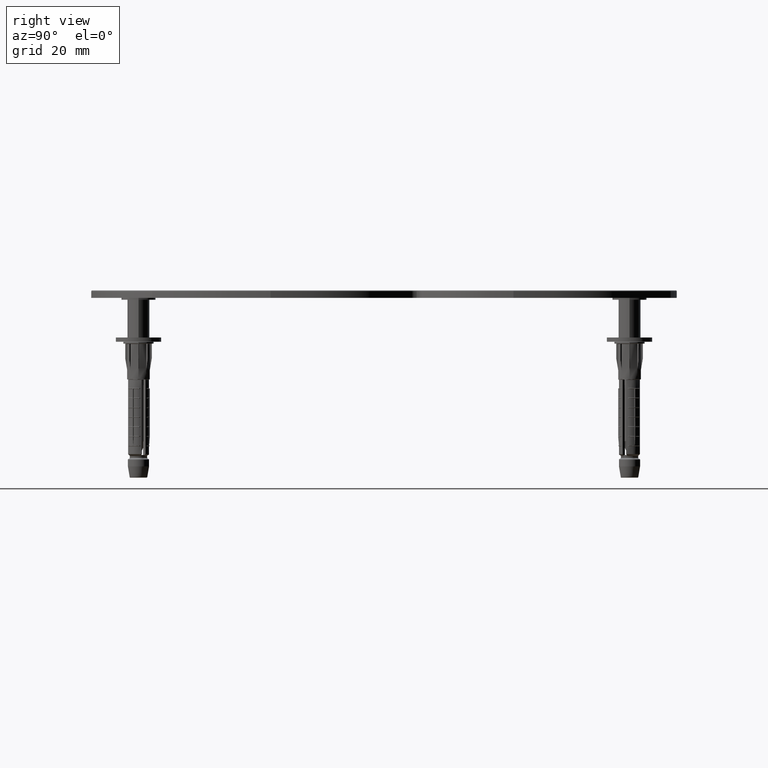
[diagram: clean part render]
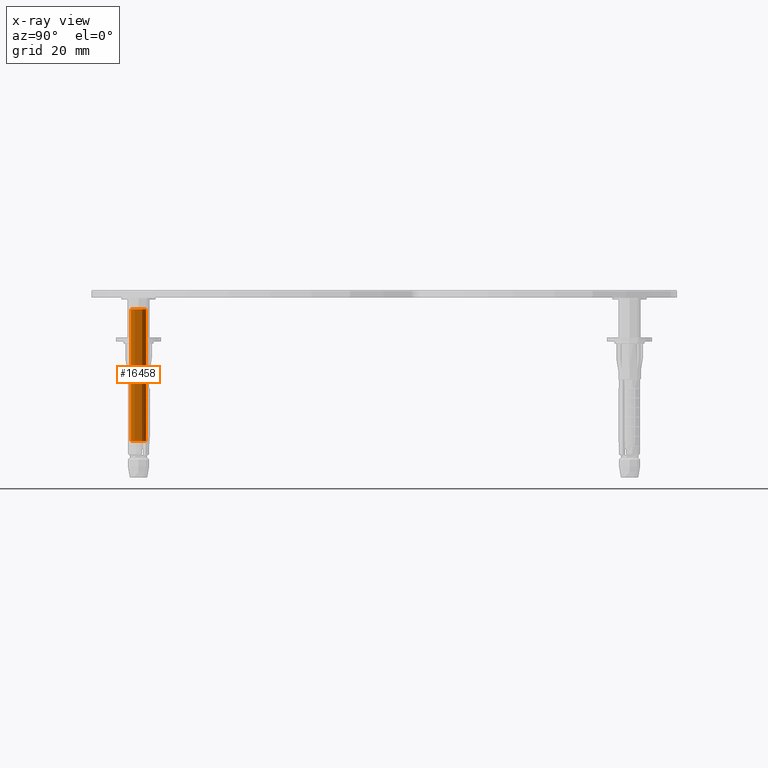
[diagram: x-ray — body ghosted, one internal face saturated and labeled with its STEP entity id]
A machine part, right view, then the same camera in x-ray: the body is ghosted and one INTERNAL B-rep face — a face not visible from any outside direction — is saturated and labeled: STEP entity #16458.
In plain terms, the highlighted cylindrical surface (edge-blend (fillet) strip) has radius 2 mm, axis along (-0, -0, -1).
Its self-contained STEP definition (entity closure, byte-faithful):
#502 = VERTEX_POINT ( 'NONE', #13977 ) ;
#1869 = DIRECTION ( 'NONE',  ( -2.548694494986879549E-32, -1.530808498934207841E-17, -1.000000000000000000 ) ) ;
#2624 = VECTOR ( 'NONE', #22915, 1000.000000000000000 ) ;
#5231 = DIRECTION ( 'NONE',  ( 1.314919014442269209E-41, 1.000000000000000000, 0.000000000000000000 ) ) ;
#6424 = CYLINDRICAL_SURFACE ( 'NONE', #15111, 1.999999999999995781 ) ;
#6832 = CARTESIAN_POINT ( 'NONE',  ( 2.449293598294702963E-16, -1.999999999999981792, -35.40999999999990422 ) ) ;
#7010 = LINE ( 'NONE', #13723, #2624 ) ;
#7024 = ORIENTED_EDGE ( 'NONE', *, *, #35345, .F. ) ;
#7136 = EDGE_CURVE ( 'NONE', #7818, #502, #37136, .T. ) ;
#7314 = CIRCLE ( 'NONE', #8744, 1.999999999999995781 ) ;
#7581 = DIRECTION ( 'NONE',  ( -1.314919014442268700E-41, -1.000000000000000000, 0.000000000000000000 ) ) ;
#7818 = VERTEX_POINT ( 'NONE', #28325 ) ;
#7837 = EDGE_CURVE ( 'NONE', #23807, #12836, #7010, .T. ) ;
#8744 = AXIS2_PLACEMENT_3D ( 'NONE', #39526, #15103, #33506 ) ;
#10598 = DIRECTION ( 'NONE',  ( -2.548694494986879549E-32, -1.530808498934202910E-17, -1.000000000000000000 ) ) ;
#12836 = VERTEX_POINT ( 'NONE', #6832 ) ;
#12852 = CARTESIAN_POINT ( 'NONE',  ( 2.629838028884532811E-41, 2.000000000000009770, -39.99999999999988631 ) ) ;
#13723 = CARTESIAN_POINT ( 'NONE',  ( 2.449293598294697047E-16, -1.999999999999981792, -39.99999999999988631 ) ) ;
#13814 = CARTESIAN_POINT ( 'NONE',  ( 2.449293598294719726E-16, -1.999999999999995781, -0.5000000000000073275 ) ) ;
#13977 = CARTESIAN_POINT ( 'NONE',  ( 2.629838028884532811E-41, 2.000000000000009770, -35.40999999999990422 ) ) ;
#15103 = DIRECTION ( 'NONE',  ( -2.548694494986879549E-32, -1.530808498934207841E-17, -1.000000000000000000 ) ) ;
#15111 = AXIS2_PLACEMENT_3D ( 'NONE', #36337, #1869, #5231 ) ;
#16458 = ADVANCED_FACE ( 'NONE', ( #28748 ), #6424, .T. ) ;
#18053 = EDGE_CURVE ( 'NONE', #7818, #23807, #23352, .T. ) ;
#18288 = ORIENTED_EDGE ( 'NONE', *, *, #18053, .T. ) ;
#18737 = VECTOR ( 'NONE', #22165, 1000.000000000000000 ) ;
#22165 = DIRECTION ( 'NONE',  ( -2.548694494986879549E-32, -1.530808498934207841E-17, -1.000000000000000000 ) ) ;
#22915 = DIRECTION ( 'NONE',  ( -2.548694494986879549E-32, -1.530808498934207841E-17, -1.000000000000000000 ) ) ;
#23352 = CIRCLE ( 'NONE', #28605, 1.999999999999995781 ) ;
#23807 = VERTEX_POINT ( 'NONE', #13814 ) ;
#25551 = ORIENTED_EDGE ( 'NONE', *, *, #7136, .F. ) ;
#28325 = CARTESIAN_POINT ( 'NONE',  ( 5.618597014461522366E-31, 1.999999999999995781, -0.5000000000000073275 ) ) ;
#28605 = AXIS2_PLACEMENT_3D ( 'NONE', #31590, #10598, #7581 ) ;
#28748 = FACE_OUTER_BOUND ( 'NONE', #38948, .T. ) ;
#31590 = CARTESIAN_POINT ( 'NONE',  ( 0.000000000000000000, 0.000000000000000000, -0.5000000000000073275 ) ) ;
#33506 = DIRECTION ( 'NONE',  ( 1.314919014442269209E-41, 1.000000000000000000, 0.000000000000000000 ) ) ;
#35345 = EDGE_CURVE ( 'NONE', #502, #12836, #7314, .T. ) ;
#36337 = CARTESIAN_POINT ( 'NONE',  ( 0.000000000000000000, 1.387778780781445676E-14, -39.99999999999988631 ) ) ;
#37136 = LINE ( 'NONE', #12852, #18737 ) ;
#37708 = ORIENTED_EDGE ( 'NONE', *, *, #7837, .T. ) ;
#38948 = EDGE_LOOP ( 'NONE', ( #18288, #37708, #7024, #25551 ) ) ;
#39526 = CARTESIAN_POINT ( 'NONE',  ( 0.000000000000000000, 1.387778780781445676E-14, -35.40999999999990422 ) ) ;